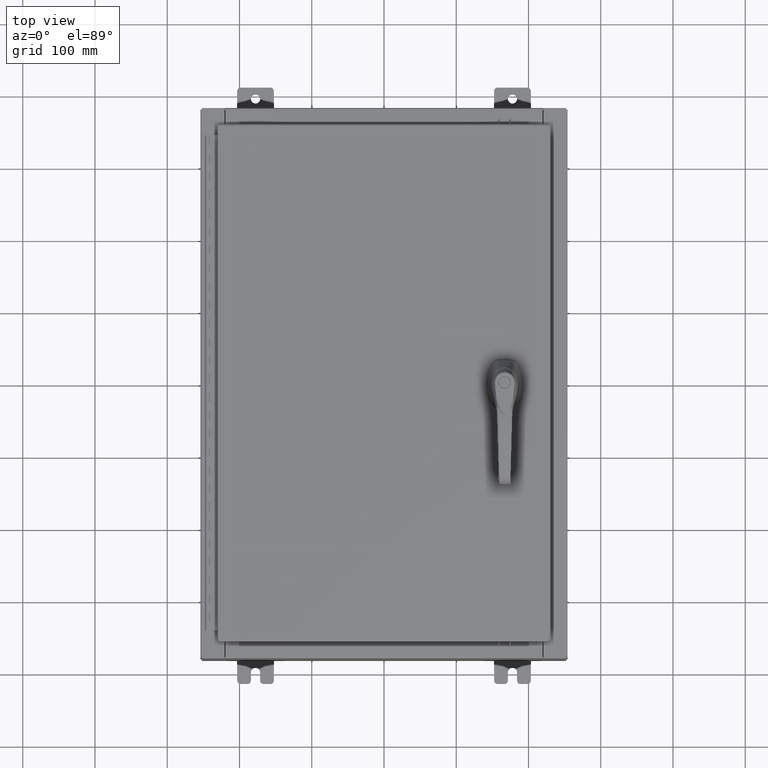
[diagram: clean part render]
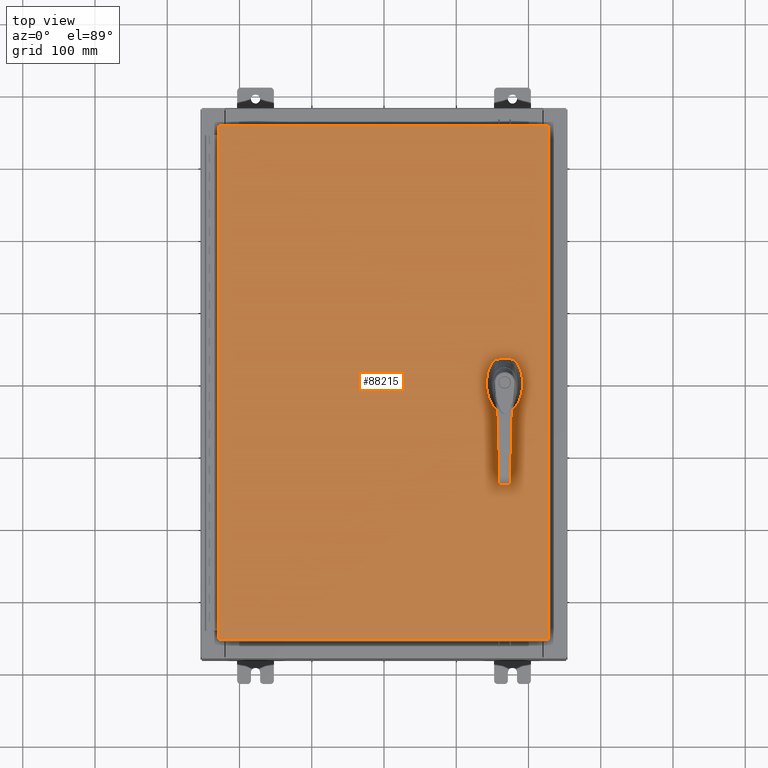
[diagram: same view with one face highlighted and labeled with its STEP entity id]
A machine part, top view. The second image highlights one B-rep face of the part: STEP entity #88215.
In plain terms, the highlighted planar face has unit normal (0, 0, -1).
Its self-contained STEP definition (entity closure, byte-faithful):
#230 = EDGE_CURVE ( 'NONE', #4773, #33616, #59805, .T. ) ;
#288 = CARTESIAN_POINT ( 'NONE',  ( 6.175000000000075300, 0.2002273707563079800, 0.0000000000000000000 ) ) ;
#2174 = EDGE_CURVE ( 'NONE', #50000, #47307, #45420, .T. ) ;
#2518 = EDGE_CURVE ( 'NONE', #36932, #47307, #22775, .T. ) ;
#4291 = CARTESIAN_POINT ( 'NONE',  ( 0.0000000000000000000, -0.4029999999999252000, 0.0000000000000000000 ) ) ;
#4621 = CARTESIAN_POINT ( 'NONE',  ( 6.578000000000000300, 0.0000000000000000000, 0.0000000000000000000 ) ) ;
#4773 = VERTEX_POINT ( 'NONE', #89755 ) ;
#8072 = CARTESIAN_POINT ( 'NONE',  ( 8.990300000000001300, -14.00629999999999800, -7.683322482180740400E-016 ) ) ;
#8187 = EDGE_CURVE ( 'NONE', #109278, #12081, #116842, .T. ) ;
#8688 = DIRECTION ( 'NONE',  ( 1.000000000000000000, 0.0000000000000000000, 0.0000000000000000000 ) ) ;
#9756 = ORIENTED_EDGE ( 'NONE', *, *, #230, .T. ) ;
#10713 = DIRECTION ( 'NONE',  ( -0.0000000000000000000, 0.0000000000000000000, 1.000000000000000000 ) ) ;
#12081 = VERTEX_POINT ( 'NONE', #78597 ) ;
#13167 = EDGE_CURVE ( 'NONE', #16871, #68507, #51563, .T. ) ;
#13752 = DIRECTION ( 'NONE',  ( 1.000000000000000000, 0.0000000000000000000, 0.0000000000000000000 ) ) ;
#16060 = CARTESIAN_POINT ( 'NONE',  ( 6.980999999999926200, 0.0000000000000000000, 0.0000000000000000000 ) ) ;
#16871 = VERTEX_POINT ( 'NONE', #100171 ) ;
#19336 = VERTEX_POINT ( 'NONE', #288 ) ;
#20379 = EDGE_LOOP ( 'NONE', ( #54374, #41129 ) ) ;
#22775 = CIRCLE ( 'NONE', #60731, 0.4499999999999156900 ) ;
#23542 = CARTESIAN_POINT ( 'NONE',  ( 6.778227370756310300, -0.4029999999999252000, 0.0000000000000000000 ) ) ;
#26905 = DIRECTION ( 'NONE',  ( -0.0000000000000000000, 0.0000000000000000000, 1.000000000000000000 ) ) ;
#27101 = CARTESIAN_POINT ( 'NONE',  ( 6.175000000000075300, -0.2002273707563079800, 0.0000000000000000000 ) ) ;
#27807 = CARTESIAN_POINT ( 'NONE',  ( -8.990299999999997700, -14.00629999999999800, 1.980589795406590900E-015 ) ) ;
#28394 = LINE ( 'NONE', #40464, #76456 ) ;
#28989 = ORIENTED_EDGE ( 'NONE', *, *, #91020, .F. ) ;
#29581 = CIRCLE ( 'NONE', #112320, 0.1715000000000000700 ) ;
#30206 = FACE_BOUND ( 'NONE', #20379, .T. ) ;
#30542 = VERTEX_POINT ( 'NONE', #86953 ) ;
#30743 = CARTESIAN_POINT ( 'NONE',  ( -8.990299999999997700, 14.00630000000000100, -2.048885995248197400E-016 ) ) ;
#30786 = CARTESIAN_POINT ( 'NONE',  ( 6.406500000000000300, -1.338000000000000100, 0.0000000000000000000 ) ) ;
#30849 = VERTEX_POINT ( 'NONE', #72695 ) ;
#31704 = AXIS2_PLACEMENT_3D ( 'NONE', #81009, #26905, #90073 ) ;
#32264 = DIRECTION ( 'NONE',  ( 0.0000000000000000000, -1.000000000000000000, 0.0000000000000000000 ) ) ;
#32986 = DIRECTION ( 'NONE',  ( 0.0000000000000000000, 0.0000000000000000000, -1.000000000000000000 ) ) ;
#33009 = FACE_OUTER_BOUND ( 'NONE', #44088, .T. ) ;
#33159 = EDGE_CURVE ( 'NONE', #30849, #36932, #39922, .T. ) ;
#33616 = VERTEX_POINT ( 'NONE', #27807 ) ;
#33818 = AXIS2_PLACEMENT_3D ( 'NONE', #117019, #62808, #8688 ) ;
#35543 = DIRECTION ( 'NONE',  ( 0.0000000000000000000, -1.000000000000000000, 0.0000000000000000000 ) ) ;
#35801 = CARTESIAN_POINT ( 'NONE',  ( -8.990299999999996000, -14.00629999999999800, 1.963515745446189200E-015 ) ) ;
#35981 = CARTESIAN_POINT ( 'NONE',  ( 6.578000000000000300, -1.338000000000000100, 0.0000000000000000000 ) ) ;
#36932 = VERTEX_POINT ( 'NONE', #23542 ) ;
#39922 = LINE ( 'NONE', #4291, #112124 ) ;
#40464 = CARTESIAN_POINT ( 'NONE',  ( 8.990300000000001300, 14.00629999999999800, -2.048885995248197400E-016 ) ) ;
#41129 = ORIENTED_EDGE ( 'NONE', *, *, #99694, .F. ) ;
#41820 = VECTOR ( 'NONE', #71298, 39.37007874015748100 ) ;
#42655 = EDGE_CURVE ( 'NONE', #12081, #4773, #28394, .T. ) ;
#43777 = VERTEX_POINT ( 'NONE', #111413 ) ;
#44088 = EDGE_LOOP ( 'NONE', ( #108511, #117013, #66977, #9756 ) ) ;
#44604 = CARTESIAN_POINT ( 'NONE',  ( 6.175000000000075300, 0.0000000000000000000, 0.0000000000000000000 ) ) ;
#45051 = DIRECTION ( 'NONE',  ( 1.000000000000000000, 0.0000000000000000000, 0.0000000000000000000 ) ) ;
#45420 = LINE ( 'NONE', #16060, #90657 ) ;
#45899 = CARTESIAN_POINT ( 'NONE',  ( 6.578000000000000300, 0.0000000000000000000, 0.0000000000000000000 ) ) ;
#47307 = VERTEX_POINT ( 'NONE', #73042 ) ;
#48832 = VECTOR ( 'NONE', #84254, 39.37007874015748100 ) ;
#48925 = ORIENTED_EDGE ( 'NONE', *, *, #85853, .F. ) ;
#50000 = VERTEX_POINT ( 'NONE', #108574 ) ;
#50220 = ORIENTED_EDGE ( 'NONE', *, *, #33159, .F. ) ;
#51563 = CIRCLE ( 'NONE', #31704, 0.1715000000000000700 ) ;
#53918 = DIRECTION ( 'NONE',  ( 1.000000000000000000, -0.0000000000000000000, -0.0000000000000000000 ) ) ;
#54374 = ORIENTED_EDGE ( 'NONE', *, *, #13167, .F. ) ;
#54958 = DIRECTION ( 'NONE',  ( 1.000000000000000000, 0.0000000000000000000, 0.0000000000000000000 ) ) ;
#55610 = CARTESIAN_POINT ( 'NONE',  ( 8.990300000000001300, -14.00629999999999800, -7.683322482180740400E-016 ) ) ;
#56422 = LINE ( 'NONE', #35801, #77650 ) ;
#59805 = LINE ( 'NONE', #30743, #105102 ) ;
#60731 = AXIS2_PLACEMENT_3D ( 'NONE', #4621, #67826, #13752 ) ;
#62808 = DIRECTION ( 'NONE',  ( -0.0000000000000000000, 0.0000000000000000000, 1.000000000000000000 ) ) ;
#63976 = CIRCLE ( 'NONE', #33818, 0.4499999999999156900 ) ;
#64828 = CARTESIAN_POINT ( 'NONE',  ( 6.578000000000000300, 0.0000000000000000000, 0.0000000000000000000 ) ) ;
#66977 = ORIENTED_EDGE ( 'NONE', *, *, #42655, .T. ) ;
#67500 = DIRECTION ( 'NONE',  ( 1.000000000000000000, 0.0000000000000000000, 0.0000000000000000000 ) ) ;
#67826 = DIRECTION ( 'NONE',  ( -0.0000000000000000000, 0.0000000000000000000, 1.000000000000000000 ) ) ;
#68507 = VERTEX_POINT ( 'NONE', #30786 ) ;
#68584 = AXIS2_PLACEMENT_3D ( 'NONE', #64828, #10713, #73927 ) ;
#68928 = CARTESIAN_POINT ( 'NONE',  ( 0.0000000000000000000, 0.0000000000000000000, 0.0000000000000000000 ) ) ;
#71298 = DIRECTION ( 'NONE',  ( 0.0000000000000000000, 1.000000000000000000, 0.0000000000000000000 ) ) ;
#71849 = EDGE_CURVE ( 'NONE', #50000, #43777, #63976, .T. ) ;
#72695 = CARTESIAN_POINT ( 'NONE',  ( 6.377772629243691100, -0.4029999999999252000, 0.0000000000000000000 ) ) ;
#73042 = CARTESIAN_POINT ( 'NONE',  ( 6.980999999999926200, -0.2002273707563079800, 0.0000000000000000000 ) ) ;
#73927 = DIRECTION ( 'NONE',  ( 1.000000000000000000, 0.0000000000000000000, 0.0000000000000000000 ) ) ;
#75766 = LINE ( 'NONE', #111591, #48832 ) ;
#76456 = VECTOR ( 'NONE', #103736, 39.37007874015748100 ) ;
#76993 = EDGE_LOOP ( 'NONE', ( #84326, #87305, #50220, #98509, #87507, #28989, #48925, #96746 ) ) ;
#77650 = VECTOR ( 'NONE', #53918, 39.37007874015748100 ) ;
#78597 = CARTESIAN_POINT ( 'NONE',  ( 8.990300000000001300, 14.00629999999999800, -2.048885995248197400E-016 ) ) ;
#80740 = CIRCLE ( 'NONE', #68584, 0.4499999999999156900 ) ;
#81009 = CARTESIAN_POINT ( 'NONE',  ( 6.578000000000000300, -1.338000000000000100, 0.0000000000000000000 ) ) ;
#84254 = DIRECTION ( 'NONE',  ( -1.000000000000000000, 0.0000000000000000000, 0.0000000000000000000 ) ) ;
#84326 = ORIENTED_EDGE ( 'NONE', *, *, #2174, .T. ) ;
#85853 = EDGE_CURVE ( 'NONE', #43777, #30542, #75766, .T. ) ;
#86439 = VECTOR ( 'NONE', #35543, 39.37007874015748100 ) ;
#86953 = CARTESIAN_POINT ( 'NONE',  ( 6.377772629243691100, 0.4029999999999252000, 0.0000000000000000000 ) ) ;
#87095 = PLANE ( 'NONE',  #108665 ) ;
#87305 = ORIENTED_EDGE ( 'NONE', *, *, #2518, .F. ) ;
#87507 = ORIENTED_EDGE ( 'NONE', *, *, #115038, .F. ) ;
#88215 = ADVANCED_FACE ( 'NONE', ( #30206, #33009, #105149 ), #87095, .F. ) ;
#89193 = AXIS2_PLACEMENT_3D ( 'NONE', #45899, #109216, #54958 ) ;
#89755 = CARTESIAN_POINT ( 'NONE',  ( -8.990299999999997700, 14.00630000000000100, -2.048885995248197400E-016 ) ) ;
#90073 = DIRECTION ( 'NONE',  ( 1.000000000000000000, 0.0000000000000000000, 0.0000000000000000000 ) ) ;
#90657 = VECTOR ( 'NONE', #106552, 39.37007874015748100 ) ;
#91020 = EDGE_CURVE ( 'NONE', #30542, #19336, #80740, .T. ) ;
#96203 = DIRECTION ( 'NONE',  ( -1.000000000000000000, 0.0000000000000000000, -0.0000000000000000000 ) ) ;
#96746 = ORIENTED_EDGE ( 'NONE', *, *, #71849, .F. ) ;
#98509 = ORIENTED_EDGE ( 'NONE', *, *, #108626, .F. ) ;
#99231 = DIRECTION ( 'NONE',  ( -0.0000000000000000000, 0.0000000000000000000, 1.000000000000000000 ) ) ;
#99694 = EDGE_CURVE ( 'NONE', #68507, #16871, #29581, .T. ) ;
#100171 = CARTESIAN_POINT ( 'NONE',  ( 6.749500000000001200, -1.338000000000000100, 0.0000000000000000000 ) ) ;
#101001 = EDGE_CURVE ( 'NONE', #33616, #109278, #56422, .T. ) ;
#103736 = DIRECTION ( 'NONE',  ( -1.000000000000000000, -0.0000000000000000000, -0.0000000000000000000 ) ) ;
#103777 = VERTEX_POINT ( 'NONE', #27101 ) ;
#105102 = VECTOR ( 'NONE', #32264, 39.37007874015748100 ) ;
#105149 = FACE_BOUND ( 'NONE', #76993, .T. ) ;
#106552 = DIRECTION ( 'NONE',  ( 0.0000000000000000000, -1.000000000000000000, 0.0000000000000000000 ) ) ;
#107711 = LINE ( 'NONE', #44604, #86439 ) ;
#108511 = ORIENTED_EDGE ( 'NONE', *, *, #101001, .T. ) ;
#108574 = CARTESIAN_POINT ( 'NONE',  ( 6.980999999999926200, 0.2002273707563080300, 0.0000000000000000000 ) ) ;
#108626 = EDGE_CURVE ( 'NONE', #103777, #30849, #117016, .T. ) ;
#108665 = AXIS2_PLACEMENT_3D ( 'NONE', #68928, #32986, #96203 ) ;
#109216 = DIRECTION ( 'NONE',  ( -0.0000000000000000000, 0.0000000000000000000, 1.000000000000000000 ) ) ;
#109278 = VERTEX_POINT ( 'NONE', #55610 ) ;
#111413 = CARTESIAN_POINT ( 'NONE',  ( 6.778227370756310300, 0.4029999999999252000, 0.0000000000000000000 ) ) ;
#111591 = CARTESIAN_POINT ( 'NONE',  ( 0.0000000000000000000, 0.4029999999999252000, 0.0000000000000000000 ) ) ;
#112124 = VECTOR ( 'NONE', #67500, 39.37007874015748100 ) ;
#112320 = AXIS2_PLACEMENT_3D ( 'NONE', #35981, #99231, #45051 ) ;
#115038 = EDGE_CURVE ( 'NONE', #19336, #103777, #107711, .T. ) ;
#116842 = LINE ( 'NONE', #8072, #41820 ) ;
#117013 = ORIENTED_EDGE ( 'NONE', *, *, #8187, .T. ) ;
#117016 = CIRCLE ( 'NONE', #89193, 0.4499999999999156900 ) ;
#117019 = CARTESIAN_POINT ( 'NONE',  ( 6.578000000000000300, 0.0000000000000000000, 0.0000000000000000000 ) ) ;